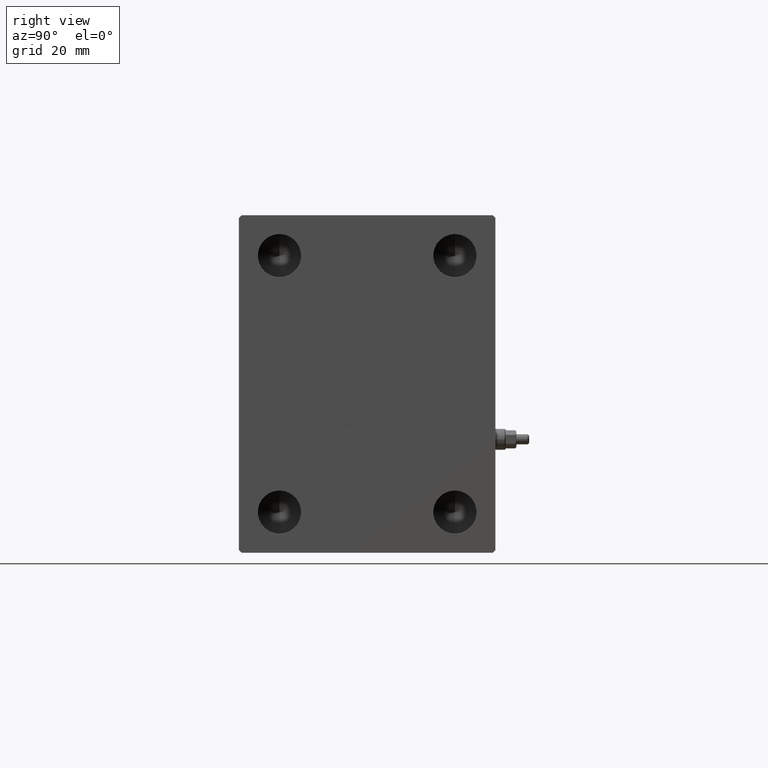
[diagram: clean part render]
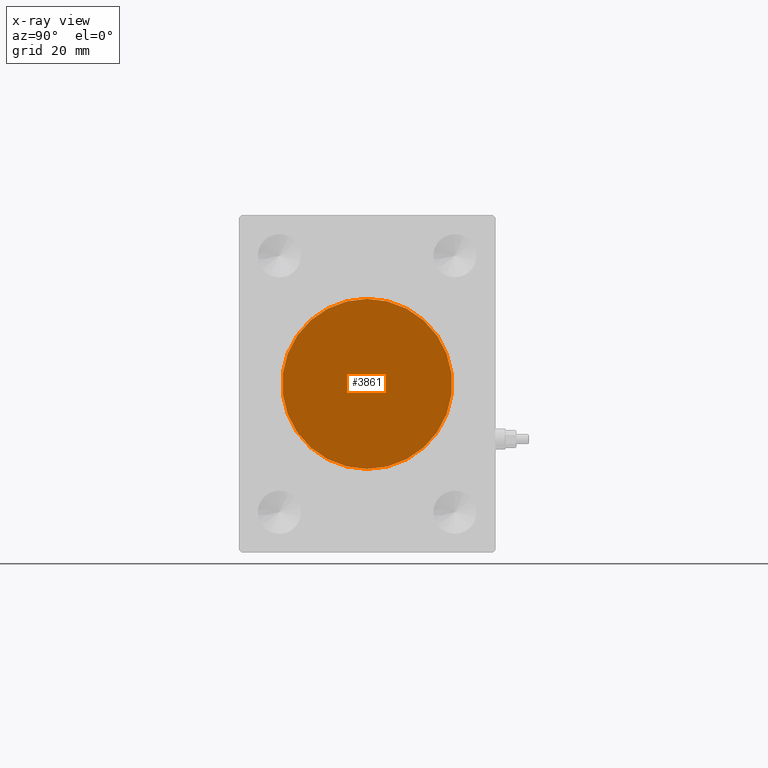
[diagram: x-ray — body ghosted, one internal face saturated and labeled with its STEP entity id]
A machine part, right view, then the same camera in x-ray: the body is ghosted and one INTERNAL B-rep face — a face not visible from any outside direction — is saturated and labeled: STEP entity #3861.
In plain terms, the highlighted planar face has unit normal (-1, 0, 0).
Its self-contained STEP definition (entity closure, byte-faithful):
#2786 = DIRECTION ( 'NONE',  ( 0.000000000000000000, 0.000000000000000000, 1.000000000000000000 ) ) ;
#3546 = DIRECTION ( 'NONE',  ( 1.000000000000000000, 0.000000000000000000, 0.000000000000000000 ) ) ;
#3861 = ADVANCED_FACE ( 'NONE', ( #13350 ), #37866, .F. ) ;
#4425 = AXIS2_PLACEMENT_3D ( 'NONE', #23078, #16214, #30191 ) ;
#5313 = VERTEX_POINT ( 'NONE', #23097 ) ;
#5483 = ORIENTED_EDGE ( 'NONE', *, *, #38791, .F. ) ;
#6471 = DIRECTION ( 'NONE',  ( 1.000000000000000000, 0.000000000000000000, -0.000000000000000000 ) ) ;
#9851 = AXIS2_PLACEMENT_3D ( 'NONE', #45170, #2786, #6471 ) ;
#13350 = FACE_OUTER_BOUND ( 'NONE', #37879, .T. ) ;
#16214 = DIRECTION ( 'NONE',  ( 0.000000000000000000, 0.000000000000000000, 1.000000000000000000 ) ) ;
#17650 = ORIENTED_EDGE ( 'NONE', *, *, #25958, .F. ) ;
#19133 = VERTEX_POINT ( 'NONE', #23050 ) ;
#23050 = CARTESIAN_POINT ( 'NONE',  ( -31.50000000000000000, 0.000000000000000000, 0.000000000000000000 ) ) ;
#23078 = CARTESIAN_POINT ( 'NONE',  ( 0.000000000000000000, 0.000000000000000000, 0.000000000000000000 ) ) ;
#23097 = CARTESIAN_POINT ( 'NONE',  ( 31.50000000000000000, 3.857637417314161900E-15, 0.000000000000000000 ) ) ;
#23351 = CARTESIAN_POINT ( 'NONE',  ( 0.000000000000000000, 0.000000000000000000, 0.000000000000000000 ) ) ;
#24230 = CIRCLE ( 'NONE', #4425, 31.50000000000000000 ) ;
#24997 = CIRCLE ( 'NONE', #37507, 31.50000000000000000 ) ;
#25958 = EDGE_CURVE ( 'NONE', #19133, #5313, #24997, .T. ) ;
#30191 = DIRECTION ( 'NONE',  ( 1.000000000000000000, 0.000000000000000000, 0.000000000000000000 ) ) ;
#33914 = DIRECTION ( 'NONE',  ( 0.000000000000000000, 0.000000000000000000, 1.000000000000000000 ) ) ;
#37507 = AXIS2_PLACEMENT_3D ( 'NONE', #23351, #33914, #3546 ) ;
#37866 = PLANE ( 'NONE',  #9851 ) ;
#37879 = EDGE_LOOP ( 'NONE', ( #17650, #5483 ) ) ;
#38791 = EDGE_CURVE ( 'NONE', #5313, #19133, #24230, .T. ) ;
#45170 = CARTESIAN_POINT ( 'NONE',  ( 0.000000000000000000, 0.000000000000000000, 0.000000000000000000 ) ) ;